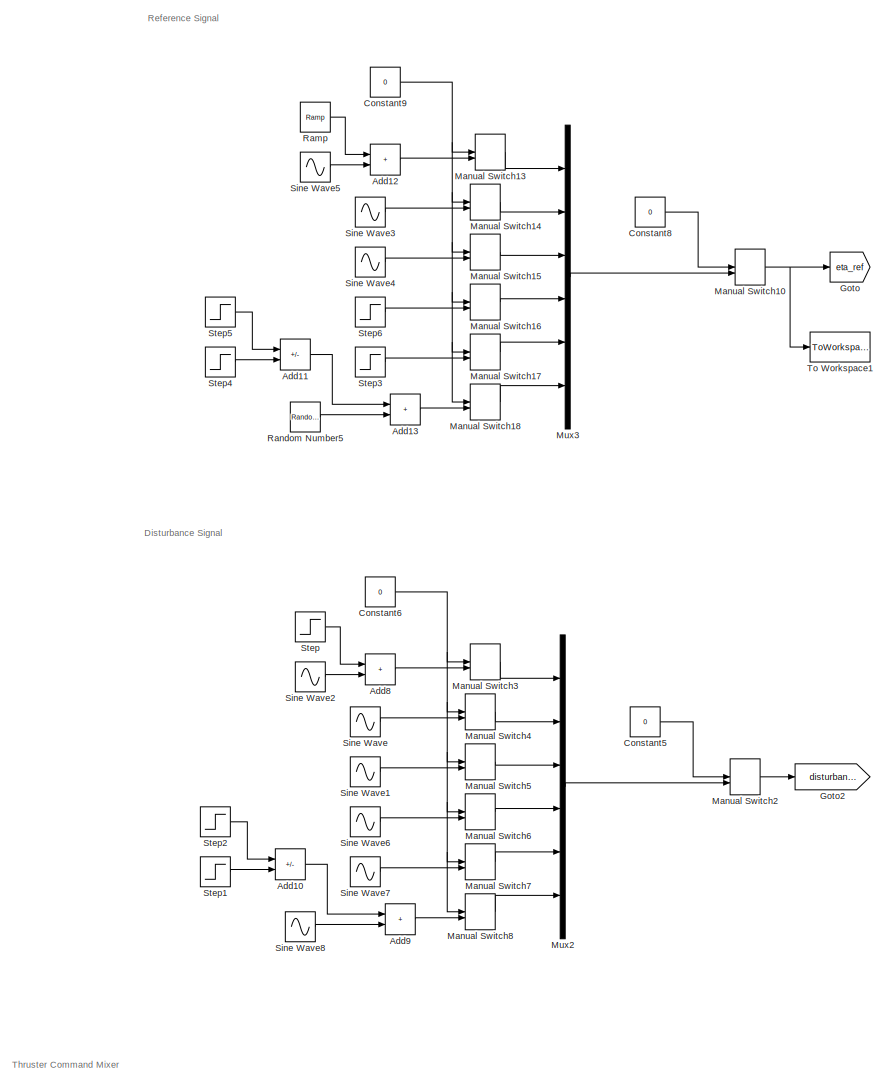
[diagram: root canvas - part 1/6, top left region]
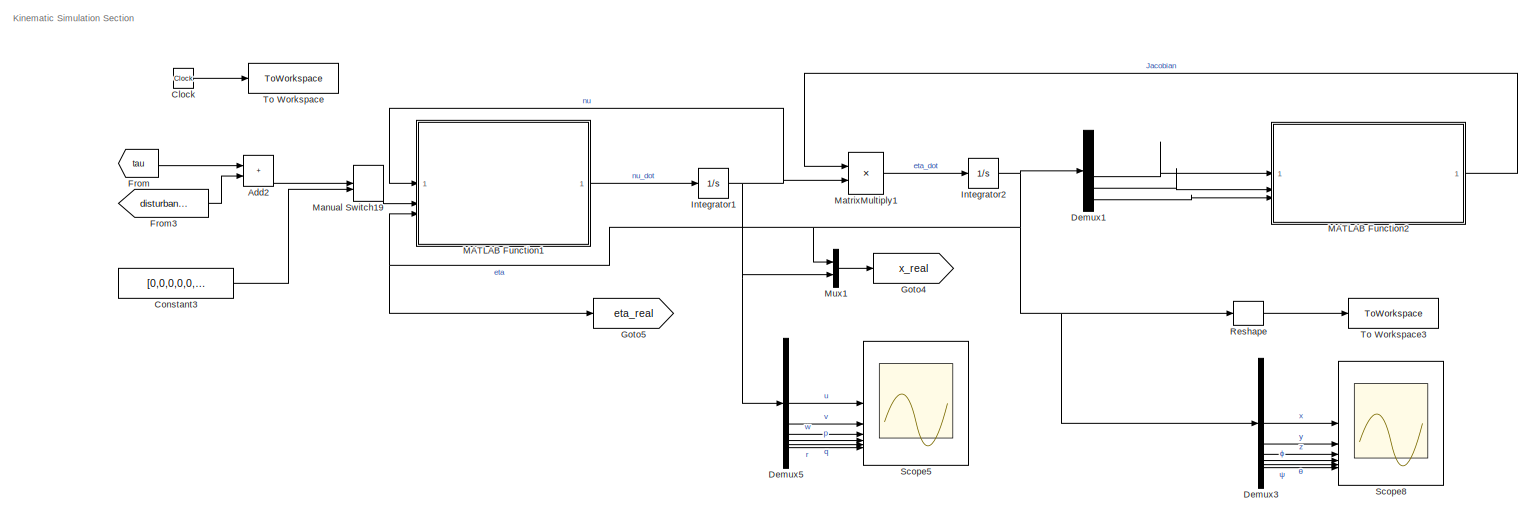
[diagram: root canvas - part 2/6, top right region]
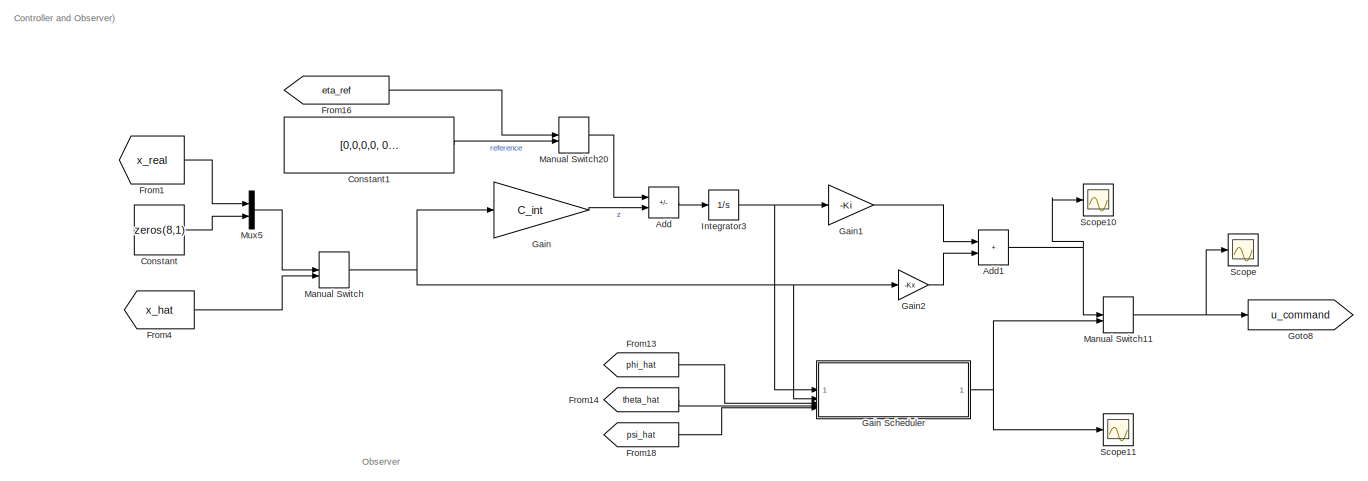
[diagram: root canvas - part 3/6, middle right region]
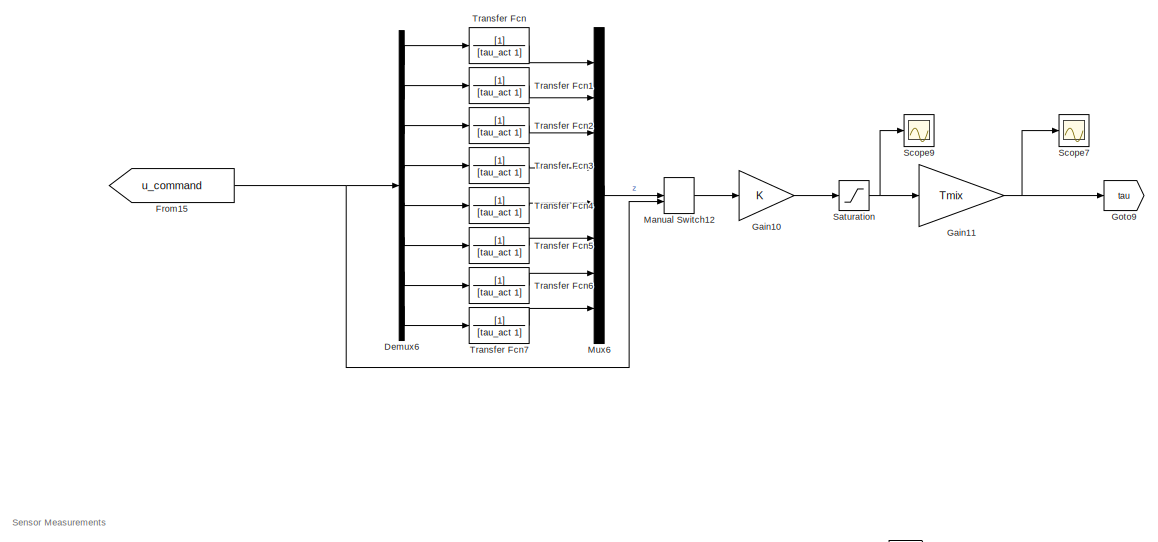
[diagram: root canvas - part 4/6, middle left region]
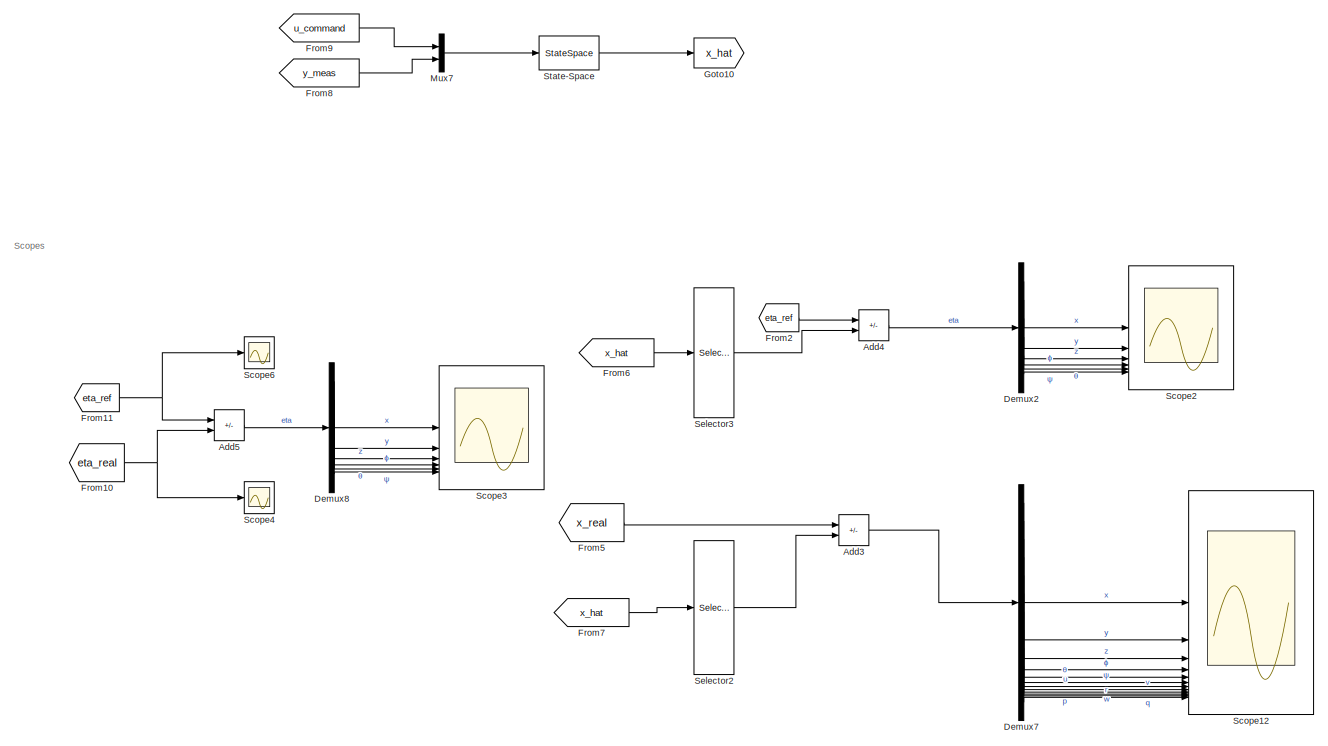
[diagram: root canvas - part 5/6, bottom right region]
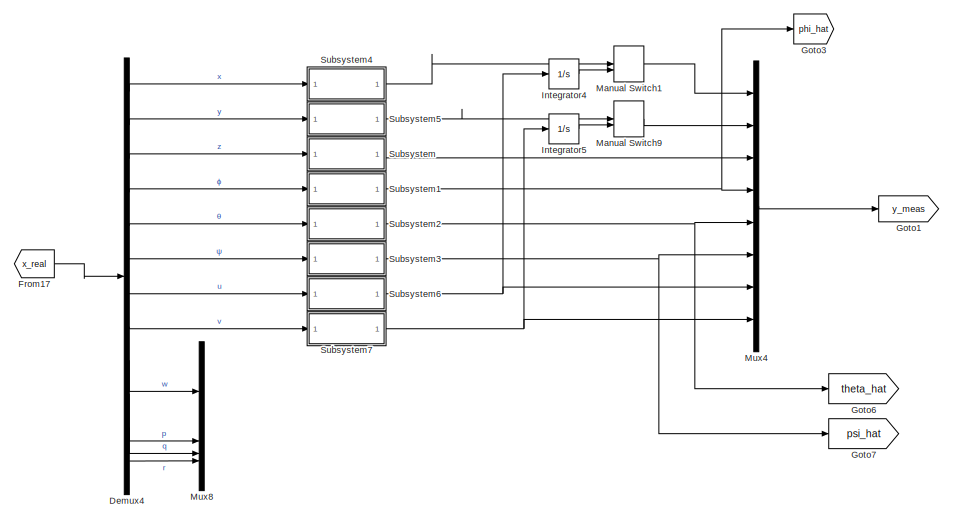
[diagram: root canvas - part 6/6, bottom left region]
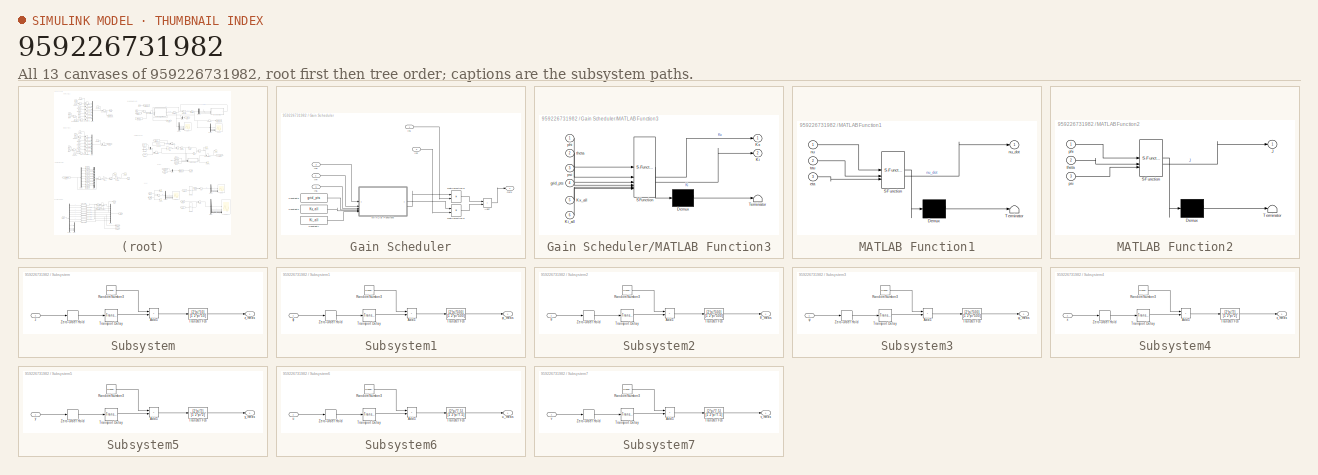
[diagram: thumbnail index - all 13 canvases of the model, root first then tree order]
MODEL slx_959226731982
KIND model
CONFIG AbsTol = 1e-3
CONFIG EnableMultiTasking = off
CONFIG FixedStep = 0.01
CONFIG MaxStep = auto
CONFIG MinStep = 1e-6
CONFIG RelTol = 1e-1
CONFIG SampleTimeConstraint = Unconstrained
CONFIG SolverName = ode15s
CONFIG StartTime = 0.0
CONFIG StopTime = 50
BLOCK [Sum] Add
  IconShape = rectangular
  Inputs = +-
BLOCK [Sum] Add1
  IconShape = rectangular
BLOCK [Sum] Add10
  IconShape = rectangular
  Inputs = -+
BLOCK [Sum] Add11
  IconShape = rectangular
  Inputs = -+
BLOCK [Sum] Add12
  IconShape = rectangular
BLOCK [Sum] Add13
  IconShape = rectangular
BLOCK [Sum] Add2
  IconShape = rectangular
BLOCK [Sum] Add3
  IconShape = rectangular
  Inputs = +-
BLOCK [Sum] Add4
  IconShape = rectangular
  Inputs = +-
BLOCK [Sum] Add5
  IconShape = rectangular
  Inputs = +-
BLOCK [Sum] Add8
  IconShape = rectangular
BLOCK [Sum] Add9
  IconShape = rectangular
BLOCK [Clock] Clock
BLOCK [Constant] Constant
  Value = zeros(8,1)
BLOCK [Constant] Constant1
  Value = [0,0,0,0, 0, 0]
BLOCK [Constant] Constant3
  Value = [0,0,0,0,0,0]
BLOCK [Constant] Constant5
  Value = 0
BLOCK [Constant] Constant6
  Value = 0
BLOCK [Constant] Constant8
  Value = 0
BLOCK [Constant] Constant9
  Value = 0
BLOCK [Demux] Demux1
  Outputs = 6
BLOCK [Demux] Demux2
  Outputs = 6
BLOCK [Demux] Demux3
  Outputs = 6
BLOCK [Demux] Demux4
  Outputs = 12
BLOCK [Demux] Demux5
  Outputs = 6
BLOCK [Demux] Demux6
  Outputs = 8
BLOCK [Demux] Demux7
  Outputs = 12
BLOCK [Demux] Demux8
  Outputs = 6
BLOCK [From] From
  GotoTag = tau
BLOCK [From] From1
  GotoTag = x_real
BLOCK [From] From10
  GotoTag = eta_real
BLOCK [From] From11
  GotoTag = eta_ref
BLOCK [From] From13
  GotoTag = phi_hat
BLOCK [From] From14
  GotoTag = theta_hat
BLOCK [From] From15
  GotoTag = u_command
BLOCK [From] From16
  GotoTag = eta_ref
BLOCK [From] From17
  GotoTag = x_real
BLOCK [From] From18
  GotoTag = psi_hat
BLOCK [From] From2
  GotoTag = eta_ref
BLOCK [From] From3
  GotoTag = disturbances
BLOCK [From] From4
  GotoTag = x_hat
BLOCK [From] From5
  GotoTag = x_real
BLOCK [From] From6
  GotoTag = x_hat
BLOCK [From] From7
  GotoTag = x_hat
BLOCK [From] From8
  GotoTag = y_meas
BLOCK [From] From9
  GotoTag = u_command
BLOCK [Gain] Gain
  Gain = C_int
  Multiplication = Matrix(K*u)
BLOCK [SubSystem] Gain Scheduler
BLOCK [Sum] Gain Scheduler/Add7
  IconShape = rectangular
BLOCK [Constant] Gain Scheduler/Constant3
  Value = grid_pts
BLOCK [Constant] Gain Scheduler/Constant4
  Value = Kx_all
BLOCK [Constant] Gain Scheduler/Constant7
  Value = Ki_all
BLOCK [Inport] Gain Scheduler/In1
BLOCK [Inport] Gain Scheduler/In2
  Port = 2
BLOCK [Inport] Gain Scheduler/In3
  Port = 3
BLOCK [Inport] Gain Scheduler/In4
  Port = 4
BLOCK [Inport] Gain Scheduler/In5
  Port = 5
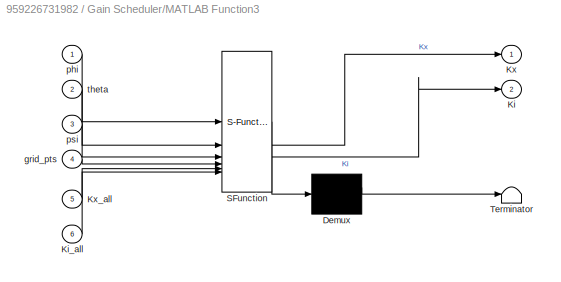
BLOCK [SubSystem] Gain Scheduler/MATLAB Function3
  ErrorFcn = Stateflow.Translate.translate
  PermitHierarchicalResolution = ExplicitOnly
  SFBlockType = MATLAB Function
  TreatAsAtomicUnit = on
BLOCK [Demux] Gain Scheduler/MATLAB Function3/ Demux 
  Outputs = 1
BLOCK [S-Function] Gain Scheduler/MATLAB Function3/ SFunction 
  EnableBusSupport = on
  FunctionName = sf_sfun
  PortCounts = [6 3]
  SFcnIsStateOwnerBlock = off
  SFunctionDeploymentMode = off
  Tag = Stateflow S-Function 4
BLOCK [Terminator] Gain Scheduler/MATLAB Function3/ Terminator 
BLOCK [Outport] Gain Scheduler/MATLAB Function3/Ki
  Port = 2
BLOCK [Inport] Gain Scheduler/MATLAB Function3/Ki_all
  Port = 6
BLOCK [Outport] Gain Scheduler/MATLAB Function3/Kx
BLOCK [Inport] Gain Scheduler/MATLAB Function3/Kx_all
  Port = 5
BLOCK [Inport] Gain Scheduler/MATLAB Function3/grid_pts
  Port = 4
BLOCK [Inport] Gain Scheduler/MATLAB Function3/phi
BLOCK [Inport] Gain Scheduler/MATLAB Function3/psi
  Port = 3
BLOCK [Inport] Gain Scheduler/MATLAB Function3/theta
  Port = 2
BLOCK [Product] Gain Scheduler/MatrixMultiply2
  Multiplication = Matrix(*)
BLOCK [Product] Gain Scheduler/MatrixMultiply3
  Multiplication = Matrix(*)
BLOCK [Outport] Gain Scheduler/Out1
BLOCK [Gain] Gain1
  Gain = -Ki
  Multiplication = Matrix(K*u)
BLOCK [Gain] Gain10
  Gain = K
BLOCK [Gain] Gain11
  Gain = Tmix
  Multiplication = Matrix(K*u) (u vector)
BLOCK [Gain] Gain2
  Gain = -Kx
  Multiplication = Matrix(K*u)
BLOCK [Goto] Goto
  GotoTag = eta_ref
BLOCK [Goto] Goto1
  GotoTag = y_meas
BLOCK [Goto] Goto10
  GotoTag = x_hat
BLOCK [Goto] Goto2
  GotoTag = disturbances
BLOCK [Goto] Goto3
  GotoTag = phi_hat
BLOCK [Goto] Goto4
  GotoTag = x_real
BLOCK [Goto] Goto5
  GotoTag = eta_real
BLOCK [Goto] Goto6
  GotoTag = theta_hat
BLOCK [Goto] Goto7
  GotoTag = psi_hat
BLOCK [Goto] Goto8
  GotoTag = u_command
BLOCK [Goto] Goto9
  GotoTag = tau
BLOCK [Integrator] Integrator1
BLOCK [Integrator] Integrator2
BLOCK [Integrator] Integrator3
BLOCK [Integrator] Integrator4
BLOCK [Integrator] Integrator5
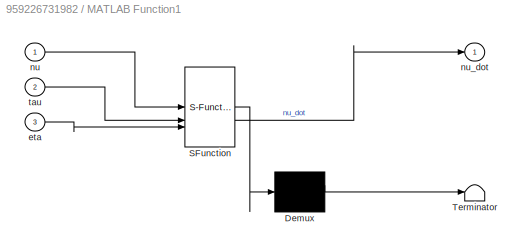
BLOCK [SubSystem] MATLAB Function1
  ErrorFcn = Stateflow.Translate.translate
  PermitHierarchicalResolution = ExplicitOnly
  SFBlockType = MATLAB Function
  TreatAsAtomicUnit = on
BLOCK [Demux] MATLAB Function1/ Demux 
  Outputs = 1
BLOCK [S-Function] MATLAB Function1/ SFunction 
  EnableBusSupport = on
  FunctionName = sf_sfun
  PortCounts = [3 2]
  SFcnIsStateOwnerBlock = off
  SFunctionDeploymentMode = off
  Tag = Stateflow S-Function 1
BLOCK [Terminator] MATLAB Function1/ Terminator 
BLOCK [Inport] MATLAB Function1/eta
  Port = 3
BLOCK [Inport] MATLAB Function1/nu
BLOCK [Outport] MATLAB Function1/nu_dot
BLOCK [Inport] MATLAB Function1/tau
  Port = 2
BLOCK [SubSystem] MATLAB Function2
  ErrorFcn = Stateflow.Translate.translate
  PermitHierarchicalResolution = ExplicitOnly
  SFBlockType = MATLAB Function
  TreatAsAtomicUnit = on
BLOCK [Demux] MATLAB Function2/ Demux 
  Outputs = 1
BLOCK [S-Function] MATLAB Function2/ SFunction 
  EnableBusSupport = on
  FunctionName = sf_sfun
  PortCounts = [3 2]
  SFcnIsStateOwnerBlock = off
  SFunctionDeploymentMode = off
  Tag = Stateflow S-Function 3
BLOCK [Terminator] MATLAB Function2/ Terminator 
BLOCK [Outport] MATLAB Function2/J
BLOCK [Inport] MATLAB Function2/phi
BLOCK [Inport] MATLAB Function2/psi
  Port = 3
BLOCK [Inport] MATLAB Function2/theta
  Port = 2
BLOCK [ManualSwitch] Manual Switch
  CurrentSetting = 0
BLOCK [ManualSwitch] Manual Switch1
BLOCK [ManualSwitch] Manual Switch10
  CurrentSetting = 0
  NameLocation = left
BLOCK [ManualSwitch] Manual Switch11
BLOCK [ManualSwitch] Manual Switch12
BLOCK [ManualSwitch] Manual Switch13
  CurrentSetting = 0
BLOCK [ManualSwitch] Manual Switch14
  CurrentSetting = 0
BLOCK [ManualSwitch] Manual Switch15
  CurrentSetting = 0
BLOCK [ManualSwitch] Manual Switch16
  CurrentSetting = 0
BLOCK [ManualSwitch] Manual Switch17
  CurrentSetting = 0
BLOCK [ManualSwitch] Manual Switch18
BLOCK [ManualSwitch] Manual Switch19
BLOCK [ManualSwitch] Manual Switch2
  CurrentSetting = 0
  NameLocation = left
BLOCK [ManualSwitch] Manual Switch20
  NameLocation = left
BLOCK [ManualSwitch] Manual Switch3
  CurrentSetting = 0
BLOCK [ManualSwitch] Manual Switch4
  CurrentSetting = 0
BLOCK [ManualSwitch] Manual Switch5
  CurrentSetting = 0
BLOCK [ManualSwitch] Manual Switch6
  CurrentSetting = 0
BLOCK [ManualSwitch] Manual Switch7
  CurrentSetting = 0
BLOCK [ManualSwitch] Manual Switch8
  CurrentSetting = 0
BLOCK [ManualSwitch] Manual Switch9
BLOCK [Product] MatrixMultiply1
  Multiplication = Matrix(*)
BLOCK [Mux] Mux1
  DisplayOption = bar
  Inputs = 2
BLOCK [Mux] Mux2
  DisplayOption = bar
  Inputs = 6
BLOCK [Mux] Mux3
  DisplayOption = bar
  Inputs = 6
BLOCK [Mux] Mux4
  DisplayOption = bar
  Inputs = 8
BLOCK [Mux] Mux5
  DisplayOption = bar
  Inputs = 2
BLOCK [Mux] Mux6
  DisplayOption = bar
  Inputs = 8
BLOCK [Mux] Mux7
  DisplayOption = bar
  Inputs = 2
BLOCK [Mux] Mux8
  DisplayOption = bar
BLOCK [Reference] Ramp  REF=simulink/Sources/Ramp
  SourceBlock = simulink/Sources/Ramp
  SourceType = Ramp
BLOCK [RandomNumber] Random Number5
  SampleTime = 0.1
  Variance = 0.05
BLOCK [Reshape] Reshape
  OutputDimensionality = Customize
  OutputDimensions = [6]
BLOCK [Saturate] Saturation
  LowerLimit = -F_max
  UpperLimit = F_max
BLOCK [Scope] Scope
  Floating = off
  NumInputPorts = 1
  ScopeSpecificationString = Simulink.scopes.TimeScopeBlockCfg('CurrentConfiguration', extmgr.ConfigurationSet(extmgr.Configuration('Core','General UI',true),extmgr.Configuration('Core','Source UI',true),extmgr.Configuration('Sources','WiredSimulink',true,'DataLoggingVariableName','ScopeData3'),extmgr.Configuration('Visuals','Time Domain',true,'SerializedDisplays',{struct('MinYLimReal','-0.0069','MaxYLimReal','0.00077','YLabe...<+1836ch>
BLOCK [Scope] Scope10
  Floating = off
  NumInputPorts = 1
  ScopeSpecificationString = Simulink.scopes.TimeScopeBlockCfg('CurrentConfiguration', extmgr.ConfigurationSet(extmgr.Configuration('Core','General UI',true),extmgr.Configuration('Core','Source UI',true),extmgr.Configuration('Sources','WiredSimulink',true,'DataLoggingVariableName','ScopeData7'),extmgr.Configuration('Visuals','Time Domain',true,'SerializedDisplays',{struct('MinYLimReal','-0.0069','MaxYLimReal','0.00077','YLabe...<+1972ch>
BLOCK [Scope] Scope11
  Floating = off
  NumInputPorts = 1
  ScopeSpecificationString = Simulink.scopes.TimeScopeBlockCfg('CurrentConfiguration', extmgr.ConfigurationSet(extmgr.Configuration('Core','General UI',true),extmgr.Configuration('Core','Source UI',true),extmgr.Configuration('Sources','WiredSimulink',true,'DataLoggingVariableName','ScopeData8'),extmgr.Configuration('Visuals','Time Domain',true,'SerializedDisplays',{struct('MinYLimReal','-18.82491','MaxYLimReal','18.79733','YL...<+1811ch>
BLOCK [Scope] Scope12
  Floating = off
  NumInputPorts = 12
  ScopeSpecificationString = Simulink.scopes.TimeScopeBlockCfg('CurrentConfiguration', extmgr.ConfigurationSet(extmgr.Configuration('Core','General UI',true),extmgr.Configuration('Core','Source UI',true),extmgr.Configuration('Sources','WiredSimulink',true,'DataLoggingVariableName','ScopeData4'),extmgr.Configuration('Visuals','Time Domain',true,'SerializedDisplays',{struct('MinYLimReal','-3.89193','MaxYLimReal','3.86611','YLab...<+1867ch>
BLOCK [Scope] Scope2
  Floating = off
  NumInputPorts = 6
  ScopeSpecificationString = Simulink.scopes.TimeScopeBlockCfg('CurrentConfiguration', extmgr.ConfigurationSet(extmgr.Configuration('Core','General UI',true),extmgr.Configuration('Core','Source UI',true),extmgr.Configuration('Sources','WiredSimulink',true,'DataLoggingVariableName','ScopeData1'),extmgr.Configuration('Visuals','Time Domain',true,'SerializedDisplays',{struct('MinYLimReal','-0.73645','MaxYLimReal','0.75534','YLab...<+1704ch>
BLOCK [Scope] Scope3
  Floating = off
  NumInputPorts = 6
  ScopeSpecificationString = Simulink.scopes.TimeScopeBlockCfg('CurrentConfiguration', extmgr.ConfigurationSet(extmgr.Configuration('Core','General UI',true),extmgr.Configuration('Core','Source UI',true),extmgr.Configuration('Sources','WiredSimulink',true,'DataLoggingVariableName','ScopeData2'),extmgr.Configuration('Visuals','Time Domain',true,'SerializedDisplays',{struct('MinYLimReal','-2.28583','MaxYLimReal','2.10355','YLab...<+1704ch>
BLOCK [Scope] Scope4
  Floating = off
  NumInputPorts = 1
  ScopeSpecificationString = Simulink.scopes.TimeScopeBlockCfg('CurrentConfiguration', extmgr.ConfigurationSet(extmgr.Configuration('Core','General UI',true),extmgr.Configuration('Core','Source UI',true),extmgr.Configuration('Sources','WiredSimulink',true,'DataLoggingVariableName','ScopeData1'),extmgr.Configuration('Visuals','Time Domain',true,'SerializedDisplays',{struct('MinYLimReal','-4.26629','MaxYLimReal','36.80499','YLa...<+1881ch>
BLOCK [Scope] Scope5
  Floating = off
  NumInputPorts = 6
  ScopeSpecificationString = Simulink.scopes.TimeScopeBlockCfg('CurrentConfiguration', extmgr.ConfigurationSet(extmgr.Configuration('Core','General UI',true),extmgr.Configuration('Core','Source UI',true),extmgr.Configuration('Sources','WiredSimulink',true,'DataLoggingVariableName','ScopeData6'),extmgr.Configuration('Visuals','Time Domain',true,'SerializedDisplays',{struct('MinYLimReal','-0.15981','MaxYLimReal','1.00931','YLab...<+1704ch>
BLOCK [Scope] Scope6
  Floating = off
  NumInputPorts = 1
  ScopeSpecificationString = Simulink.scopes.TimeScopeBlockCfg('CurrentConfiguration', extmgr.ConfigurationSet(extmgr.Configuration('Core','General UI',true),extmgr.Configuration('Core','Source UI',true),extmgr.Configuration('Sources','WiredSimulink',true,'DataLoggingVariableName','ScopeData2'),extmgr.Configuration('Visuals','Time Domain',true,'SerializedDisplays',{struct('MinYLimReal','-4.26629','MaxYLimReal','36.80499','YLa...<+1941ch>
BLOCK [Scope] Scope7
  Floating = off
  NumInputPorts = 1
  ScopeSpecificationString = Simulink.scopes.TimeScopeBlockCfg('CurrentConfiguration', extmgr.ConfigurationSet(extmgr.Configuration('Core','General UI',true),extmgr.Configuration('Core','Source UI',true),extmgr.Configuration('Sources','WiredSimulink',true,'DataLoggingVariableName','ScopeData4'),extmgr.Configuration('Visuals','Time Domain',true,'SerializedDisplays',{struct('MinYLimReal','-74.65389','MaxYLimReal','44.55767','YL...<+1706ch>
BLOCK [Scope] Scope8
  Floating = off
  NumInputPorts = 6
  ScopeSpecificationString = Simulink.scopes.TimeScopeBlockCfg('CurrentConfiguration', extmgr.ConfigurationSet(extmgr.Configuration('Core','General UI',true),extmgr.Configuration('Core','Source UI',true),extmgr.Configuration('Sources','WiredSimulink',true,'DataLoggingVariableName','ScopeData2'),extmgr.Configuration('Visuals','Time Domain',true,'SerializedDisplays',{struct('MinYLimReal','-0.00131','MaxYLimReal','0.00378','YLab...<+1704ch>
BLOCK [Scope] Scope9
  Floating = off
  NumInputPorts = 1
  ScopeSpecificationString = Simulink.scopes.TimeScopeBlockCfg('CurrentConfiguration', extmgr.ConfigurationSet(extmgr.Configuration('Core','General UI',true),extmgr.Configuration('Core','Source UI',true),extmgr.Configuration('Sources','WiredSimulink',true,'DataLoggingVariableName','ScopeData5'),extmgr.Configuration('Visuals','Time Domain',true,'SerializedDisplays',{struct('MinYLimReal','-45.31727','MaxYLimReal','40.04952','YL...<+1777ch>
BLOCK [Selector] Selector2
  IndexOptions = Index vector (dialog)
  Indices = [1 2 3 4 5 6 7 8 9 10 11 12]
  InputPortWidth = 20
  OutputSizes = 1
BLOCK [Selector] Selector3
  IndexOptions = Index vector (dialog)
  Indices = [1 2 3 4 5 6]
  InputPortWidth = 20
  OutputSizes = 1
BLOCK [Sin] Sine Wave
  Amplitude = 15
  Frequency = 0.05
  SampleTime = 0
BLOCK [Sin] Sine Wave1
  Amplitude = 15
  Frequency = 0.05
  SampleTime = 0
BLOCK [Sin] Sine Wave2
  Amplitude = 15
  Frequency = 0.05
  SampleTime = 0
BLOCK [Sin] Sine Wave3
  Amplitude = 4
  Frequency = 0.075
  SampleTime = 0
BLOCK [Sin] Sine Wave4
  Amplitude = 4
  Frequency = 0.08
  SampleTime = 0
BLOCK [Sin] Sine Wave5
  Amplitude = 0
  Frequency = 0.05
  SampleTime = 0
BLOCK [Sin] Sine Wave6
  Amplitude = 5
  Frequency = 0.05
  SampleTime = 0
BLOCK [Sin] Sine Wave7
  Amplitude = 5
  Frequency = 0.05
  SampleTime = 0
BLOCK [Sin] Sine Wave8
  Amplitude = 5
  Frequency = 0.05
  SampleTime = 0
BLOCK [StateSpace] State-Space
  A = A_obs
  B = B_obs
  C = C_obs
  D = D_obs
  InitialCondition = 0
BLOCK [Step] Step
  After = 0
  SampleTime = 0
  Time = 0
BLOCK [Step] Step1
  After = 5
  SampleTime = 0
  Time = 10
BLOCK [Step] Step2
  After = 5
  SampleTime = 0
  Time = 20
BLOCK [Step] Step3
  After = 0.5
  SampleTime = 2
  Time = 0.0
BLOCK [Step] Step4
  SampleTime = 2
  Time = 5
BLOCK [Step] Step5
  SampleTime = 2
  Time = 8
BLOCK [Step] Step6
  After = 0.5
  SampleTime = 2
  Time = 10
BLOCK [SubSystem] Subsystem
BLOCK [Sum] Subsystem/Add5
  IconShape = rectangular
BLOCK [RandomNumber] Subsystem/Random Number3
  SampleTime = 0.1
  Variance = 1.5e-5
BLOCK [TransferFcn] Subsystem/Transfer Fcn
  Denominator = [1 2*pi*10]
  Numerator = [2*pi*10]
BLOCK [TransportDelay] Subsystem/Transport Delay
  DelayTime = 0
BLOCK [ZeroOrderHold] Subsystem/Zero-Order Hold
  SampleTime = 0.05
BLOCK [Inport] Subsystem/z
BLOCK [Outport] Subsystem/z_meas
BLOCK [SubSystem] Subsystem1
BLOCK [Sum] Subsystem1/Add5
  IconShape = rectangular
BLOCK [RandomNumber] Subsystem1/Random Number3
  SampleTime = 0.1
  Variance = 1e-5
BLOCK [TransferFcn] Subsystem1/Transfer Fcn
  Denominator = [1 2*pi*500]
  Numerator = [2*pi*500]
BLOCK [TransportDelay] Subsystem1/Transport Delay
  DelayTime = 0
BLOCK [ZeroOrderHold] Subsystem1/Zero-Order Hold
  SampleTime = 0.01
BLOCK [Outport] Subsystem1/φ_meas
BLOCK [Inport] Subsystem1/ϕ
BLOCK [SubSystem] Subsystem2
BLOCK [Sum] Subsystem2/Add5
  IconShape = rectangular
BLOCK [RandomNumber] Subsystem2/Random Number3
  SampleTime = 0.1
  Variance = 1e-5
BLOCK [TransferFcn] Subsystem2/Transfer Fcn
  Denominator = [1 2*pi*500]
  Numerator = [2*pi*500]
BLOCK [TransportDelay] Subsystem2/Transport Delay
  DelayTime = 0
BLOCK [ZeroOrderHold] Subsystem2/Zero-Order Hold
  SampleTime = 0.01
BLOCK [Inport] Subsystem2/θ
BLOCK [Outport] Subsystem2/θ_meas
BLOCK [SubSystem] Subsystem3
BLOCK [Sum] Subsystem3/Add5
  IconShape = rectangular
BLOCK [RandomNumber] Subsystem3/Random Number3
  SampleTime = 0.1
  Variance = 1e-5
BLOCK [TransferFcn] Subsystem3/Transfer Fcn
  Denominator = [1 2*pi*500]
  Numerator = [2*pi*500]
BLOCK [TransportDelay] Subsystem3/Transport Delay
  DelayTime = 0
BLOCK [ZeroOrderHold] Subsystem3/Zero-Order Hold
  SampleTime = 0.001
BLOCK [Inport] Subsystem3/ψ
BLOCK [Outport] Subsystem3/ψ_meas
BLOCK [SubSystem] Subsystem4
BLOCK [Sum] Subsystem4/Add5
  IconShape = rectangular
BLOCK [RandomNumber] Subsystem4/Random Number3
  SampleTime = 0.1
  Variance = 1.3e-3
BLOCK [TransferFcn] Subsystem4/Transfer Fcn
  Denominator = [1 2*pi*2]
  Numerator = [2*pi*2]
BLOCK [TransportDelay] Subsystem4/Transport Delay
  DelayTime = 1.2
BLOCK [ZeroOrderHold] Subsystem4/Zero-Order Hold
  SampleTime = 0.25
BLOCK [Inport] Subsystem4/x
BLOCK [Outport] Subsystem4/x_meas
BLOCK [SubSystem] Subsystem5
BLOCK [Sum] Subsystem5/Add5
  IconShape = rectangular
BLOCK [RandomNumber] Subsystem5/Random Number3
  SampleTime = 0.1
  Variance = 1.3e-3
BLOCK [TransferFcn] Subsystem5/Transfer Fcn
  Denominator = [1 2*pi*2]
  Numerator = [2*pi*2]
BLOCK [TransportDelay] Subsystem5/Transport Delay
  DelayTime = 1.2
BLOCK [ZeroOrderHold] Subsystem5/Zero-Order Hold
  SampleTime = 0.25
BLOCK [Inport] Subsystem5/y
BLOCK [Outport] Subsystem5/y_meas
BLOCK [SubSystem] Subsystem6
BLOCK [Sum] Subsystem6/Add5
  IconShape = rectangular
BLOCK [RandomNumber] Subsystem6/Random Number3
  SampleTime = 0.1
  Variance = 0.005
BLOCK [TransferFcn] Subsystem6/Transfer Fcn
  Denominator = [1 2*pi*7.5]
  Numerator = [2*pi*7.5]
BLOCK [TransportDelay] Subsystem6/Transport Delay
  DelayTime = 0.1
BLOCK [ZeroOrderHold] Subsystem6/Zero-Order Hold
  SampleTime = 0.0667
BLOCK [Inport] Subsystem6/u
BLOCK [Outport] Subsystem6/u_meas
BLOCK [SubSystem] Subsystem7
BLOCK [Sum] Subsystem7/Add5
  IconShape = rectangular
BLOCK [RandomNumber] Subsystem7/Random Number3
  SampleTime = 0.1
  Variance = 0.005
BLOCK [TransferFcn] Subsystem7/Transfer Fcn
  Denominator = [1 2*pi*7.5]
  Numerator = [2*pi*7.5]
BLOCK [TransportDelay] Subsystem7/Transport Delay
  DelayTime = 0.1
BLOCK [ZeroOrderHold] Subsystem7/Zero-Order Hold
  SampleTime = 0.0667
BLOCK [Inport] Subsystem7/v
BLOCK [Outport] Subsystem7/v_meas
BLOCK [ToWorkspace] To Workspace
  FixptAsFi = on
  MaxDataPoints = inf
  SampleTime = -1
  VariableName = t_sim
BLOCK [ToWorkspace] To Workspace1
  FixptAsFi = on
  MaxDataPoints = inf
  SampleTime = -1
  VariableName = eta_ref
BLOCK [ToWorkspace] To Workspace3
  FixptAsFi = on
  MaxDataPoints = inf
  SampleTime = -1
  VariableName = eta_NL
BLOCK [TransferFcn] Transfer Fcn
  Denominator = [tau_act 1]
BLOCK [TransferFcn] Transfer Fcn1
  Denominator = [tau_act 1]
BLOCK [TransferFcn] Transfer Fcn2
  Denominator = [tau_act 1]
BLOCK [TransferFcn] Transfer Fcn3
  Denominator = [tau_act 1]
BLOCK [TransferFcn] Transfer Fcn4
  Denominator = [tau_act 1]
BLOCK [TransferFcn] Transfer Fcn5
  Denominator = [tau_act 1]
BLOCK [TransferFcn] Transfer Fcn6
  Denominator = [tau_act 1]
BLOCK [TransferFcn] Transfer Fcn7
  Denominator = [tau_act 1]
ANNOTATION (root): Controller and Observer)
ANNOTATION (root): Disturbance Signal
ANNOTATION (root): Kinematic Simulation Section
ANNOTATION (root): Observer
ANNOTATION (root): Reference Signal
ANNOTATION (root): Scopes
ANNOTATION (root): Sensor Measurements
ANNOTATION (root): Thruster Command Mixer
LINE Add10:1 -> Add9:1
LINE Add11:1 -> Add13:1
LINE Add12:1 -> Manual Switch13:2
LINE Add13:1 -> Manual Switch18:2
NET Add1:1 -> Manual Switch11:1, Scope10:1
LINE Add2:1 -> Manual Switch19:1
LINE Add3:1 -> Demux7:1
LINE Add4:1 -> Demux2:1
LINE Add5:1 -> Demux8:1
LINE Add8:1 -> Manual Switch3:2
LINE Add9:1 -> Manual Switch8:2
LINE Add:1 -> Integrator3:1
LINE Clock:1 -> To Workspace:1
LINE Constant1:1 -> Manual Switch20:2
LINE Constant3:1 -> Manual Switch19:2
LINE Constant5:1 -> Manual Switch2:1
NET Constant6:1 -> Manual Switch3:1, Manual Switch4:1, Manual Switch5:1, Manual Switch6:1, Manual Switch7:1, Manual Switch8:1
LINE Constant8:1 -> Manual Switch10:1
NET Constant9:1 -> Manual Switch13:1, Manual Switch14:1, Manual Switch15:1, Manual Switch16:1, Manual Switch17:1, Manual Switch18:1
LINE Constant:1 -> Mux5:2
LINE Demux1:4 -> MATLAB Function2:1
LINE Demux1:5 -> MATLAB Function2:2
LINE Demux1:6 -> MATLAB Function2:3
LINE Demux2:1 -> Scope2:1
LINE Demux2:2 -> Scope2:2
LINE Demux2:3 -> Scope2:3
LINE Demux2:4 -> Scope2:4
LINE Demux2:5 -> Scope2:5
LINE Demux2:6 -> Scope2:6
LINE Demux3:1 -> Scope8:1
LINE Demux3:2 -> Scope8:2
LINE Demux3:3 -> Scope8:3
LINE Demux3:4 -> Scope8:4
LINE Demux3:5 -> Scope8:5
LINE Demux3:6 -> Scope8:6
LINE Demux4:1 -> Subsystem4:1
LINE Demux4:10 -> Mux8:2
LINE Demux4:11 -> Mux8:3
LINE Demux4:12 -> Mux8:4
LINE Demux4:2 -> Subsystem5:1
LINE Demux4:3 -> Subsystem:1
LINE Demux4:4 -> Subsystem1:1
LINE Demux4:5 -> Subsystem2:1
LINE Demux4:6 -> Subsystem3:1
LINE Demux4:7 -> Subsystem6:1
LINE Demux4:8 -> Subsystem7:1
LINE Demux4:9 -> Mux8:1
LINE Demux5:1 -> Scope5:1
LINE Demux5:2 -> Scope5:2
LINE Demux5:3 -> Scope5:3
LINE Demux5:4 -> Scope5:4
LINE Demux5:5 -> Scope5:5
LINE Demux5:6 -> Scope5:6
LINE Demux6:1 -> Transfer Fcn:1
LINE Demux6:2 -> Transfer Fcn1:1
LINE Demux6:3 -> Transfer Fcn2:1
LINE Demux6:4 -> Transfer Fcn3:1
LINE Demux6:5 -> Transfer Fcn4:1
LINE Demux6:6 -> Transfer Fcn5:1
LINE Demux6:7 -> Transfer Fcn6:1
LINE Demux6:8 -> Transfer Fcn7:1
LINE Demux7:1 -> Scope12:1
LINE Demux7:10 -> Scope12:10
LINE Demux7:11 -> Scope12:11
LINE Demux7:12 -> Scope12:12
LINE Demux7:2 -> Scope12:2
LINE Demux7:3 -> Scope12:3
LINE Demux7:4 -> Scope12:4
LINE Demux7:5 -> Scope12:5
LINE Demux7:6 -> Scope12:6
LINE Demux7:7 -> Scope12:7
LINE Demux7:8 -> Scope12:8
LINE Demux7:9 -> Scope12:9
LINE Demux8:1 -> Scope3:1
LINE Demux8:2 -> Scope3:2
LINE Demux8:3 -> Scope3:3
LINE Demux8:4 -> Scope3:4
LINE Demux8:5 -> Scope3:5
LINE Demux8:6 -> Scope3:6
NET From10:1 -> Add5:2, Scope4:1
NET From11:1 -> Add5:1, Scope6:1
LINE From13:1 -> Gain Scheduler:3
LINE From14:1 -> Gain Scheduler:4
NET From15:1 -> Demux6:1, Manual Switch12:2
LINE From16:1 -> Manual Switch20:1
LINE From17:1 -> Demux4:1
LINE From18:1 -> Gain Scheduler:5
LINE From1:1 -> Mux5:1
LINE From2:1 -> Add4:1
LINE From3:1 -> Add2:2
LINE From4:1 -> Manual Switch:2
LINE From5:1 -> Add3:1
LINE From6:1 -> Selector3:1
LINE From7:1 -> Selector2:1
LINE From8:1 -> Mux7:2
LINE From9:1 -> Mux7:1
LINE From:1 -> Add2:1
LINE Gain Scheduler/Add7:1 -> Gain Scheduler/Out1:1
LINE Gain Scheduler/Constant3:1 -> Gain Scheduler/MATLAB Function3:4
LINE Gain Scheduler/Constant4:1 -> Gain Scheduler/MATLAB Function3:5
LINE Gain Scheduler/Constant7:1 -> Gain Scheduler/MATLAB Function3:6
LINE Gain Scheduler/In1:1 -> Gain Scheduler/MatrixMultiply3:2
LINE Gain Scheduler/In2:1 -> Gain Scheduler/MatrixMultiply2:2
LINE Gain Scheduler/In3:1 -> Gain Scheduler/MATLAB Function3:1
LINE Gain Scheduler/In4:1 -> Gain Scheduler/MATLAB Function3:2
LINE Gain Scheduler/In5:1 -> Gain Scheduler/MATLAB Function3:3
LINE Gain Scheduler/MATLAB Function3:1 -> Gain Scheduler/MatrixMultiply2:1
LINE Gain Scheduler/MATLAB Function3:2 -> Gain Scheduler/MatrixMultiply3:1
LINE Gain Scheduler/MatrixMultiply2:1 -> Gain Scheduler/Add7:2
LINE Gain Scheduler/MatrixMultiply3:1 -> Gain Scheduler/Add7:1
NET Gain Scheduler:1 -> Manual Switch11:2, Scope11:1
LINE Gain10:1 -> Saturation:1
NET Gain11:1 -> Goto9:1, Scope7:1
LINE Gain1:1 -> Add1:1
LINE Gain2:1 -> Add1:2
LINE Gain:1 -> Add:2
NET Integrator1:1 -> Demux5:1, MATLAB Function1:1, MatrixMultiply1:2, Mux1:2
NET Integrator2:1 -> Demux1:1, Demux3:1, Goto5:1, MATLAB Function1:3, Mux1:1, Reshape:1
NET Integrator3:1 -> Gain Scheduler:1, Gain1:1
LINE Integrator4:1 -> Manual Switch1:2
LINE Integrator5:1 -> Manual Switch9:2
LINE MATLAB Function1:1 -> Integrator1:1
LINE MATLAB Function2:1 -> MatrixMultiply1:1
NET Manual Switch10:1 -> Goto:1, To Workspace1:1
NET Manual Switch11:1 -> Goto8:1, Scope:1
LINE Manual Switch12:1 -> Gain10:1
LINE Manual Switch13:1 -> Mux3:1
LINE Manual Switch14:1 -> Mux3:2
LINE Manual Switch15:1 -> Mux3:3
LINE Manual Switch16:1 -> Mux3:4
LINE Manual Switch17:1 -> Mux3:5
LINE Manual Switch18:1 -> Mux3:6
LINE Manual Switch19:1 -> MATLAB Function1:2
LINE Manual Switch1:1 -> Mux4:1
LINE Manual Switch20:1 -> Add:1
LINE Manual Switch2:1 -> Goto2:1
LINE Manual Switch3:1 -> Mux2:1
LINE Manual Switch4:1 -> Mux2:2
LINE Manual Switch5:1 -> Mux2:3
LINE Manual Switch6:1 -> Mux2:4
LINE Manual Switch7:1 -> Mux2:5
LINE Manual Switch8:1 -> Mux2:6
LINE Manual Switch9:1 -> Mux4:2
NET Manual Switch:1 -> Gain Scheduler:2, Gain2:1, Gain:1
LINE MatrixMultiply1:1 -> Integrator2:1
LINE Mux1:1 -> Goto4:1
LINE Mux2:1 -> Manual Switch2:2
LINE Mux3:1 -> Manual Switch10:2
LINE Mux4:1 -> Goto1:1
LINE Mux5:1 -> Manual Switch:1
LINE Mux6:1 -> Manual Switch12:1
LINE Mux7:1 -> State-Space:1
LINE Ramp:1 -> Add12:1
LINE Random Number5:1 -> Add13:2
LINE Reshape:1 -> To Workspace3:1
NET Saturation:1 -> Gain11:1, Scope9:1
LINE Selector2:1 -> Add3:2
LINE Selector3:1 -> Add4:2
LINE Sine Wave1:1 -> Manual Switch5:2
LINE Sine Wave2:1 -> Add8:2
LINE Sine Wave3:1 -> Manual Switch14:2
LINE Sine Wave4:1 -> Manual Switch15:2
LINE Sine Wave5:1 -> Add12:2
LINE Sine Wave6:1 -> Manual Switch6:2
LINE Sine Wave7:1 -> Manual Switch7:2
LINE Sine Wave8:1 -> Add9:2
LINE Sine Wave:1 -> Manual Switch4:2
LINE State-Space:1 -> Goto10:1
LINE Step1:1 -> Add10:2
LINE Step2:1 -> Add10:1
LINE Step3:1 -> Manual Switch17:2
LINE Step4:1 -> Add11:2
LINE Step5:1 -> Add11:1
LINE Step6:1 -> Manual Switch16:2
LINE Step:1 -> Add8:1
LINE Subsystem/Add5:1 -> Subsystem/Transfer Fcn:1
LINE Subsystem/Random Number3:1 -> Subsystem/Add5:1
LINE Subsystem/Transfer Fcn:1 -> Subsystem/z_meas:1
LINE Subsystem/Transport Delay:1 -> Subsystem/Add5:2
LINE Subsystem/Zero-Order Hold:1 -> Subsystem/Transport Delay:1
LINE Subsystem/z:1 -> Subsystem/Zero-Order Hold:1
LINE Subsystem1/Add5:1 -> Subsystem1/Transfer Fcn:1
LINE Subsystem1/Random Number3:1 -> Subsystem1/Add5:1
LINE Subsystem1/Transfer Fcn:1 -> Subsystem1/φ_meas:1
LINE Subsystem1/Transport Delay:1 -> Subsystem1/Add5:2
LINE Subsystem1/Zero-Order Hold:1 -> Subsystem1/Transport Delay:1
LINE Subsystem1/ϕ:1 -> Subsystem1/Zero-Order Hold:1
NET Subsystem1:1 -> Goto3:1, Mux4:4
LINE Subsystem2/Add5:1 -> Subsystem2/Transfer Fcn:1
LINE Subsystem2/Random Number3:1 -> Subsystem2/Add5:1
LINE Subsystem2/Transfer Fcn:1 -> Subsystem2/θ_meas:1
LINE Subsystem2/Transport Delay:1 -> Subsystem2/Add5:2
LINE Subsystem2/Zero-Order Hold:1 -> Subsystem2/Transport Delay:1
LINE Subsystem2/θ:1 -> Subsystem2/Zero-Order Hold:1
NET Subsystem2:1 -> Goto6:1, Mux4:5
LINE Subsystem3/Add5:1 -> Subsystem3/Transfer Fcn:1
LINE Subsystem3/Random Number3:1 -> Subsystem3/Add5:1
LINE Subsystem3/Transfer Fcn:1 -> Subsystem3/ψ_meas:1
LINE Subsystem3/Transport Delay:1 -> Subsystem3/Add5:2
LINE Subsystem3/Zero-Order Hold:1 -> Subsystem3/Transport Delay:1
LINE Subsystem3/ψ:1 -> Subsystem3/Zero-Order Hold:1
NET Subsystem3:1 -> Goto7:1, Mux4:6
LINE Subsystem4/Add5:1 -> Subsystem4/Transfer Fcn:1
LINE Subsystem4/Random Number3:1 -> Subsystem4/Add5:1
LINE Subsystem4/Transfer Fcn:1 -> Subsystem4/x_meas:1
LINE Subsystem4/Transport Delay:1 -> Subsystem4/Add5:2
LINE Subsystem4/Zero-Order Hold:1 -> Subsystem4/Transport Delay:1
LINE Subsystem4/x:1 -> Subsystem4/Zero-Order Hold:1
LINE Subsystem4:1 -> Manual Switch1:1
LINE Subsystem5/Add5:1 -> Subsystem5/Transfer Fcn:1
LINE Subsystem5/Random Number3:1 -> Subsystem5/Add5:1
LINE Subsystem5/Transfer Fcn:1 -> Subsystem5/y_meas:1
LINE Subsystem5/Transport Delay:1 -> Subsystem5/Add5:2
LINE Subsystem5/Zero-Order Hold:1 -> Subsystem5/Transport Delay:1
LINE Subsystem5/y:1 -> Subsystem5/Zero-Order Hold:1
LINE Subsystem5:1 -> Manual Switch9:1
LINE Subsystem6/Add5:1 -> Subsystem6/Transfer Fcn:1
LINE Subsystem6/Random Number3:1 -> Subsystem6/Add5:1
LINE Subsystem6/Transfer Fcn:1 -> Subsystem6/u_meas:1
LINE Subsystem6/Transport Delay:1 -> Subsystem6/Add5:2
LINE Subsystem6/Zero-Order Hold:1 -> Subsystem6/Transport Delay:1
LINE Subsystem6/u:1 -> Subsystem6/Zero-Order Hold:1
NET Subsystem6:1 -> Integrator4:1, Mux4:7
LINE Subsystem7/Add5:1 -> Subsystem7/Transfer Fcn:1
LINE Subsystem7/Random Number3:1 -> Subsystem7/Add5:1
LINE Subsystem7/Transfer Fcn:1 -> Subsystem7/v_meas:1
LINE Subsystem7/Transport Delay:1 -> Subsystem7/Add5:2
LINE Subsystem7/Zero-Order Hold:1 -> Subsystem7/Transport Delay:1
LINE Subsystem7/v:1 -> Subsystem7/Zero-Order Hold:1
NET Subsystem7:1 -> Integrator5:1, Mux4:8
LINE Subsystem:1 -> Mux4:3
LINE Transfer Fcn1:1 -> Mux6:2
LINE Transfer Fcn2:1 -> Mux6:3
LINE Transfer Fcn3:1 -> Mux6:4
LINE Transfer Fcn4:1 -> Mux6:5
LINE Transfer Fcn5:1 -> Mux6:6
LINE Transfer Fcn6:1 -> Mux6:7
LINE Transfer Fcn7:1 -> Mux6:8
LINE Transfer Fcn:1 -> Mux6:1
note: NET lines group one-source signal fan-out (src -> all destinations, sorted); 1:1 wires keep LINE
CHART MATLAB Function1 states=1 transitions=1
  STATE_LABEL 'eML_blk_kernel()'
  STATE_LABEL 'SCRIPT:\nfunction nu_dot = computeDynamicsSimple(nu, tau, eta)\n% Simplified 6-DOF + full restoring forces/moments per paper Eq. (12)\n%\n% Inputs:\n%   nu  [6×1] body-frame velocity\n%   tau [6×1] applied forces/torques\n%   eta [6×1] pose [x;y;z;φ;θ;ψ]\n%\n  %#codegen\n  rov_parameters = rovParameters();\n\n  %% Inertia\n  M_rb = [ rov_parameters.mass*eye(3), zeros(3);\n           zeros(3),       rov_paramete...<+1298ch>'
CHART MATLAB Function2 states=1 transitions=1
  STATE_LABEL 'eML_blk_kernel()'
  STATE_LABEL 'SCRIPT:\nfunction J = computeJacobianSimple(phi, theta, psi)\n% ZYX Euler Jacobian, smooth pitch‐singularity clamp\n\n  %#codegen\n  cph = cos(phi);   sph = sin(phi);\n  cth = cos(theta); sth = sin(theta);\n  cps = cos(psi);   sps = sin(psi);\n\n  Rz = [cps,-sps,0; sps,cps,0; 0,0,1];\n  Ry = [cth,0,sth; 0,1,0; -sth,0,cth];\n  Rx = [1,0,0; 0,cph,-sph; 0,sph,cph];\n  R  = Rz * Ry * Rx;\n\n  % smooth clamp\n  eps_t...<+240ch>'
CHART Gain Scheduler/MATLAB Function3 states=1 transitions=1
  STATE_LABEL 'eML_blk_kernel()'
  STATE_LABEL 'SCRIPT:\nfunction [Kx, Ki] = scheduleGains(phi, theta, psi, grid_pts, Kx_all, Ki_all)\n  %#codegen\n  m = size(Kx_all,1);\n  n = size(Kx_all,2);\n  Kx = zeros(m,n);\n  Ki = zeros(m,6);\n\n  % roll & pitch diffs (linear)\n  dphi   = grid_pts(:,1) - phi;\n  dtheta = grid_pts(:,2) - theta;\n\n  % yaw diff, wrapped into [-pi,pi]\n  dpsi_raw = grid_pts(:,3) - psi;\n  dpsi     = atan2(sin(dpsi_raw), cos(dpsi_raw));\n\n...<+182ch>'
CHART  states=0 transitions=0
CHART  states=0 transitions=0
CHART  states=0 transitions=0
